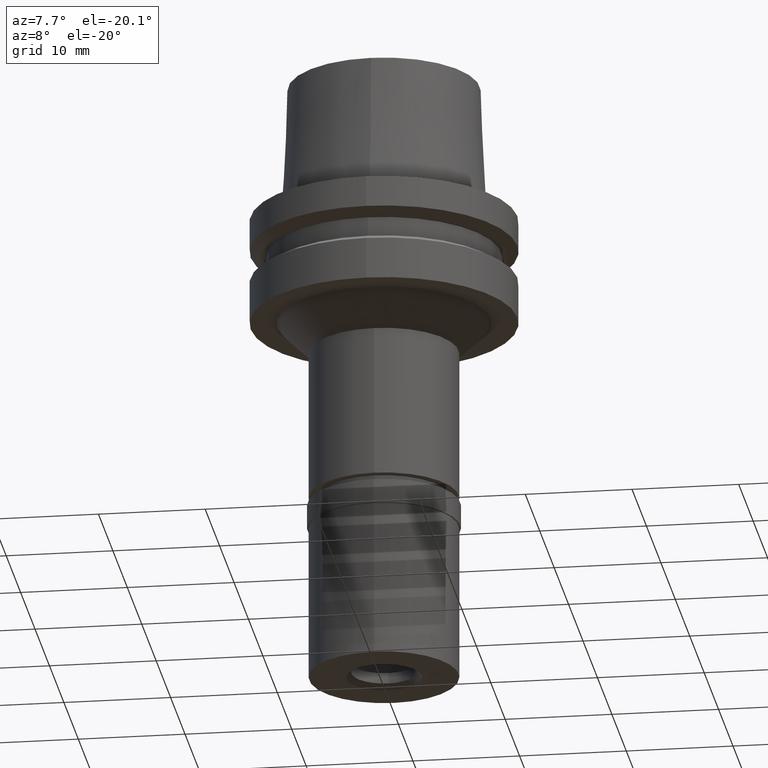
[diagram: clean part render]
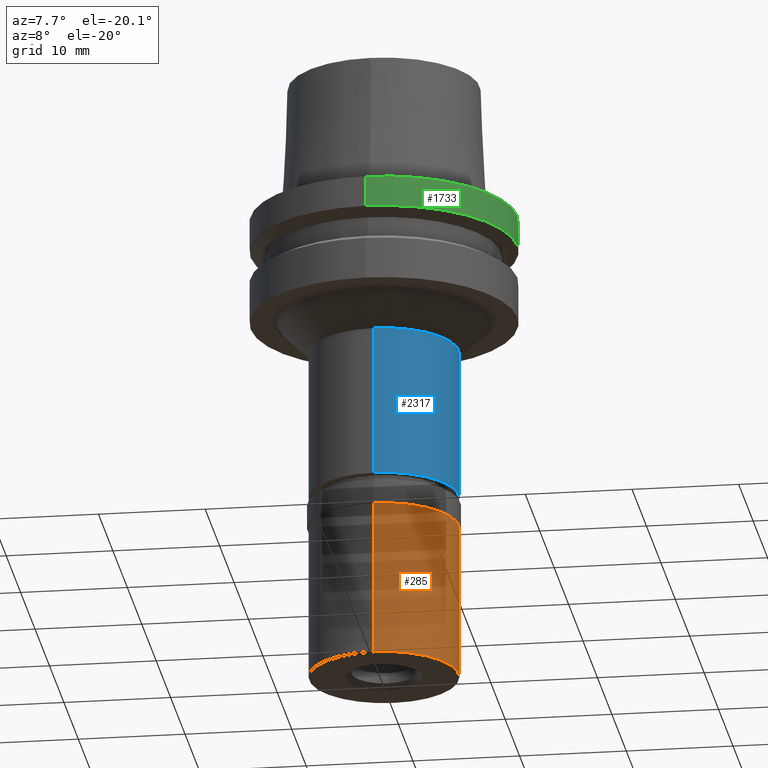
[diagram: same view with three faces highlighted in distinct colors, each labeled with its STEP entity id]
A machine part, auxiliary view with three faces highlighted in distinct colors.
Their STEP definitions:

[orange] entity #285 — the highlighted cylindrical surface (partial cylindrical patch) has radius 7 mm, axis along (0, 0, 1).
#53 = CIRCLE ( 'NONE', #441, 7.000000000000000000 ) ;
#54 = VERTEX_POINT ( 'NONE', #177 ) ;
#174 = CARTESIAN_POINT ( 'NONE',  ( 0.0000000000000000000, -7.000000000000000000, -17.00000000000000000 ) ) ;
#177 = CARTESIAN_POINT ( 'NONE',  ( 0.0000000000000000000, 7.000000000000000000, -17.00000000000000000 ) ) ;
#285 = ADVANCED_FACE ( 'NONE', ( #2351 ), #2131, .T. ) ;
#307 = DIRECTION ( 'NONE',  ( 0.0000000000000000000, 0.0000000000000000000, -1.000000000000000000 ) ) ;
#319 = CARTESIAN_POINT ( 'NONE',  ( 0.0000000000000000000, 0.0000000000000000000, -2.299999999999999822 ) ) ;
#335 = DIRECTION ( 'NONE',  ( 0.0000000000000000000, 0.0000000000000000000, 1.000000000000000000 ) ) ;
#420 = CARTESIAN_POINT ( 'NONE',  ( 0.0000000000000000000, -7.000000000000000000, -2.299999999999999822 ) ) ;
#441 = AXIS2_PLACEMENT_3D ( 'NONE', #319, #1999, #736 ) ;
#446 = LINE ( 'NONE', #1922, #1807 ) ;
#470 = DIRECTION ( 'NONE',  ( 0.0000000000000000000, 1.000000000000000000, 0.0000000000000000000 ) ) ;
#703 = EDGE_CURVE ( 'NONE', #1379, #1572, #53, .T. ) ;
#736 = DIRECTION ( 'NONE',  ( 0.0000000000000000000, 1.000000000000000000, 0.0000000000000000000 ) ) ;
#774 = CARTESIAN_POINT ( 'NONE',  ( 0.0000000000000000000, 7.000000000000000000, -2.299999999999999822 ) ) ;
#802 = VECTOR ( 'NONE', #307, 1000.000000000000000 ) ;
#928 = CIRCLE ( 'NONE', #2462, 7.000000000000000000 ) ;
#962 = VERTEX_POINT ( 'NONE', #174 ) ;
#1134 = ORIENTED_EDGE ( 'NONE', *, *, #1744, .T. ) ;
#1307 = EDGE_LOOP ( 'NONE', ( #1797, #1134, #2187, #2138 ) ) ;
#1350 = EDGE_CURVE ( 'NONE', #1379, #54, #2406, .T. ) ;
#1379 = VERTEX_POINT ( 'NONE', #2040 ) ;
#1476 = CARTESIAN_POINT ( 'NONE',  ( 0.0000000000000000000, 0.0000000000000000000, -17.85000000000000142 ) ) ;
#1572 = VERTEX_POINT ( 'NONE', #420 ) ;
#1744 = EDGE_CURVE ( 'NONE', #1572, #962, #446, .T. ) ;
#1777 = DIRECTION ( 'NONE',  ( 0.0000000000000000000, -1.000000000000000000, 0.0000000000000000000 ) ) ;
#1797 = ORIENTED_EDGE ( 'NONE', *, *, #703, .T. ) ;
#1807 = VECTOR ( 'NONE', #2159, 1000.000000000000000 ) ;
#1813 = AXIS2_PLACEMENT_3D ( 'NONE', #1476, #2314, #470 ) ;
#1922 = CARTESIAN_POINT ( 'NONE',  ( 0.0000000000000000000, -7.000000000000000000, -2.299999999999999822 ) ) ;
#1999 = DIRECTION ( 'NONE',  ( 0.0000000000000000000, 0.0000000000000000000, -1.000000000000000000 ) ) ;
#2040 = CARTESIAN_POINT ( 'NONE',  ( 0.0000000000000000000, 7.000000000000000000, -2.299999999999999822 ) ) ;
#2131 = CYLINDRICAL_SURFACE ( 'NONE', #1813, 7.000000000000000000 ) ;
#2138 = ORIENTED_EDGE ( 'NONE', *, *, #1350, .F. ) ;
#2159 = DIRECTION ( 'NONE',  ( 0.0000000000000000000, 0.0000000000000000000, -1.000000000000000000 ) ) ;
#2187 = ORIENTED_EDGE ( 'NONE', *, *, #2425, .T. ) ;
#2231 = CARTESIAN_POINT ( 'NONE',  ( 0.0000000000000000000, 0.0000000000000000000, -17.00000000000000000 ) ) ;
#2314 = DIRECTION ( 'NONE',  ( 0.0000000000000000000, 0.0000000000000000000, 1.000000000000000000 ) ) ;
#2351 = FACE_OUTER_BOUND ( 'NONE', #1307, .T. ) ;
#2406 = LINE ( 'NONE', #774, #802 ) ;
#2425 = EDGE_CURVE ( 'NONE', #962, #54, #928, .T. ) ;
#2462 = AXIS2_PLACEMENT_3D ( 'NONE', #2231, #335, #1777 ) ;

[blue] entity #2317 — the highlighted cylindrical surface (partial cylindrical patch) has radius 7 mm, axis along (0, 0, 1).
#136 = AXIS2_PLACEMENT_3D ( 'NONE', #2641, #753, #982 ) ;
#168 = DIRECTION ( 'NONE',  ( 0.0000000000000000000, 1.000000000000000000, 0.0000000000000000000 ) ) ;
#191 = AXIS2_PLACEMENT_3D ( 'NONE', #1862, #2295, #852 ) ;
#269 = VERTEX_POINT ( 'NONE', #1467 ) ;
#342 = CARTESIAN_POINT ( 'NONE',  ( 0.0000000000000000000, 7.000000000000000000, -13.00000000000000000 ) ) ;
#354 = CIRCLE ( 'NONE', #136, 7.000000000000000000 ) ;
#370 = ORIENTED_EDGE ( 'NONE', *, *, #1292, .F. ) ;
#578 = CYLINDRICAL_SURFACE ( 'NONE', #1856, 7.000000000000000000 ) ;
#686 = VERTEX_POINT ( 'NONE', #342 ) ;
#699 = VECTOR ( 'NONE', #767, 1000.000000000000000 ) ;
#753 = DIRECTION ( 'NONE',  ( 0.0000000000000000000, 0.0000000000000000000, -1.000000000000000000 ) ) ;
#767 = DIRECTION ( 'NONE',  ( 0.0000000000000000000, 0.0000000000000000000, -1.000000000000000000 ) ) ;
#820 = DIRECTION ( 'NONE',  ( 0.0000000000000000000, 0.0000000000000000000, 1.000000000000000000 ) ) ;
#852 = DIRECTION ( 'NONE',  ( 0.0000000000000000000, -1.000000000000000000, 0.0000000000000000000 ) ) ;
#974 = CARTESIAN_POINT ( 'NONE',  ( 0.0000000000000000000, 7.000000000000000000, -13.00000000000000000 ) ) ;
#982 = DIRECTION ( 'NONE',  ( 0.0000000000000000000, 1.000000000000000000, 0.0000000000000000000 ) ) ;
#1030 = CIRCLE ( 'NONE', #191, 7.000000000000000000 ) ;
#1144 = ORIENTED_EDGE ( 'NONE', *, *, #2110, .T. ) ;
#1258 = CARTESIAN_POINT ( 'NONE',  ( 0.0000000000000000000, 0.0000000000000000000, -43.70000000000000284 ) ) ;
#1288 = ORIENTED_EDGE ( 'NONE', *, *, #1562, .T. ) ;
#1292 = EDGE_CURVE ( 'NONE', #686, #2055, #1829, .T. ) ;
#1311 = LINE ( 'NONE', #1594, #699 ) ;
#1411 = CARTESIAN_POINT ( 'NONE',  ( 0.0000000000000000000, -7.000000000000000000, -27.30000000000000071 ) ) ;
#1467 = CARTESIAN_POINT ( 'NONE',  ( 0.0000000000000000000, -7.000000000000000000, -13.00000000000000000 ) ) ;
#1562 = EDGE_CURVE ( 'NONE', #2565, #2055, #1030, .T. ) ;
#1590 = VECTOR ( 'NONE', #2051, 1000.000000000000000 ) ;
#1594 = CARTESIAN_POINT ( 'NONE',  ( 0.0000000000000000000, -7.000000000000000000, -13.00000000000000000 ) ) ;
#1622 = CARTESIAN_POINT ( 'NONE',  ( 0.0000000000000000000, 7.000000000000000000, -27.30000000000000071 ) ) ;
#1664 = ORIENTED_EDGE ( 'NONE', *, *, #2158, .T. ) ;
#1829 = LINE ( 'NONE', #974, #1590 ) ;
#1837 = EDGE_LOOP ( 'NONE', ( #1144, #1664, #1288, #370 ) ) ;
#1856 = AXIS2_PLACEMENT_3D ( 'NONE', #1258, #820, #168 ) ;
#1862 = CARTESIAN_POINT ( 'NONE',  ( 0.0000000000000000000, 0.0000000000000000000, -27.30000000000000071 ) ) ;
#2051 = DIRECTION ( 'NONE',  ( 0.0000000000000000000, 0.0000000000000000000, -1.000000000000000000 ) ) ;
#2055 = VERTEX_POINT ( 'NONE', #1622 ) ;
#2110 = EDGE_CURVE ( 'NONE', #686, #269, #354, .T. ) ;
#2158 = EDGE_CURVE ( 'NONE', #269, #2565, #1311, .T. ) ;
#2295 = DIRECTION ( 'NONE',  ( 0.0000000000000000000, 0.0000000000000000000, 1.000000000000000000 ) ) ;
#2317 = ADVANCED_FACE ( 'NONE', ( #2686 ), #578, .T. ) ;
#2565 = VERTEX_POINT ( 'NONE', #1411 ) ;
#2641 = CARTESIAN_POINT ( 'NONE',  ( 0.0000000000000000000, 0.0000000000000000000, -13.00000000000000000 ) ) ;
#2686 = FACE_OUTER_BOUND ( 'NONE', #1837, .T. ) ;

[green] entity #1733 — the highlighted cylindrical surface (partial cylindrical patch) has radius 12.5 mm, axis along (0, 0, 1).
#21 = CIRCLE ( 'NONE', #1595, 12.50000000000000000 ) ;
#133 = DIRECTION ( 'NONE',  ( 0.0000000000000000000, 0.0000000000000000000, -1.000000000000000000 ) ) ;
#326 = DIRECTION ( 'NONE',  ( 0.0000000000000000000, -1.000000000000000000, 0.0000000000000000000 ) ) ;
#349 = CARTESIAN_POINT ( 'NONE',  ( 0.0000000000000000000, 0.0000000000000000000, -2.912286759726999907 ) ) ;
#374 = ORIENTED_EDGE ( 'NONE', *, *, #2542, .F. ) ;
#384 = VERTEX_POINT ( 'NONE', #1117 ) ;
#612 = DIRECTION ( 'NONE',  ( 0.0000000000000000000, -2.445909868662999674E-13, -1.000000000000000000 ) ) ;
#785 = VERTEX_POINT ( 'NONE', #2068 ) ;
#834 = DIRECTION ( 'NONE',  ( 0.0000000000000000000, 2.445909868662999674E-13, -1.000000000000000000 ) ) ;
#871 = VERTEX_POINT ( 'NONE', #2075 ) ;
#897 = VERTEX_POINT ( 'NONE', #1252 ) ;
#1117 = CARTESIAN_POINT ( 'NONE',  ( 0.0000000000000000000, -12.50000000000000000, 3.552713678800999489E-14 ) ) ;
#1171 = VECTOR ( 'NONE', #834, 1000.000000000000000 ) ;
#1180 = ORIENTED_EDGE ( 'NONE', *, *, #1398, .T. ) ;
#1184 = ORIENTED_EDGE ( 'NONE', *, *, #1578, .T. ) ;
#1252 = CARTESIAN_POINT ( 'NONE',  ( 0.0000000000000000000, 12.50000000000000000, 3.552713678800999489E-14 ) ) ;
#1268 = LINE ( 'NONE', #2315, #1171 ) ;
#1398 = EDGE_CURVE ( 'NONE', #785, #871, #21, .T. ) ;
#1453 = EDGE_CURVE ( 'NONE', #897, #384, #1462, .T. ) ;
#1462 = CIRCLE ( 'NONE', #1904, 12.50000000000000000 ) ;
#1491 = CARTESIAN_POINT ( 'NONE',  ( 0.0000000000000000000, 0.0000000000000000000, -43.70000000000000284 ) ) ;
#1578 = EDGE_CURVE ( 'NONE', #384, #785, #1268, .T. ) ;
#1595 = AXIS2_PLACEMENT_3D ( 'NONE', #349, #2436, #326 ) ;
#1691 = EDGE_LOOP ( 'NONE', ( #1778, #1184, #1180, #374 ) ) ;
#1729 = DIRECTION ( 'NONE',  ( 0.0000000000000000000, 1.000000000000000000, 0.0000000000000000000 ) ) ;
#1733 = ADVANCED_FACE ( 'NONE', ( #2578 ), #2353, .T. ) ;
#1743 = DIRECTION ( 'NONE',  ( 0.0000000000000000000, 0.0000000000000000000, 1.000000000000000000 ) ) ;
#1778 = ORIENTED_EDGE ( 'NONE', *, *, #1453, .T. ) ;
#1904 = AXIS2_PLACEMENT_3D ( 'NONE', #2023, #133, #2601 ) ;
#2023 = CARTESIAN_POINT ( 'NONE',  ( 0.0000000000000000000, 0.0000000000000000000, 3.552713678800999489E-14 ) ) ;
#2053 = CARTESIAN_POINT ( 'NONE',  ( 0.0000000000000000000, 12.50000000000000000, 2.368475785866999778E-14 ) ) ;
#2068 = CARTESIAN_POINT ( 'NONE',  ( 0.0000000000000000000, -12.50000000000000000, -2.912286759727999996 ) ) ;
#2075 = CARTESIAN_POINT ( 'NONE',  ( 0.0000000000000000000, 12.50000000000000000, -2.912286759727999996 ) ) ;
#2289 = VECTOR ( 'NONE', #612, 1000.000000000000000 ) ;
#2315 = CARTESIAN_POINT ( 'NONE',  ( 0.0000000000000000000, -12.50000000000000000, 2.368475785866999778E-14 ) ) ;
#2353 = CYLINDRICAL_SURFACE ( 'NONE', #2364, 12.50000000000000000 ) ;
#2364 = AXIS2_PLACEMENT_3D ( 'NONE', #1491, #1743, #1729 ) ;
#2436 = DIRECTION ( 'NONE',  ( 0.0000000000000000000, 0.0000000000000000000, 1.000000000000000000 ) ) ;
#2450 = LINE ( 'NONE', #2053, #2289 ) ;
#2542 = EDGE_CURVE ( 'NONE', #897, #871, #2450, .T. ) ;
#2578 = FACE_OUTER_BOUND ( 'NONE', #1691, .T. ) ;
#2601 = DIRECTION ( 'NONE',  ( 0.0000000000000000000, 1.000000000000000000, 0.0000000000000000000 ) ) ;